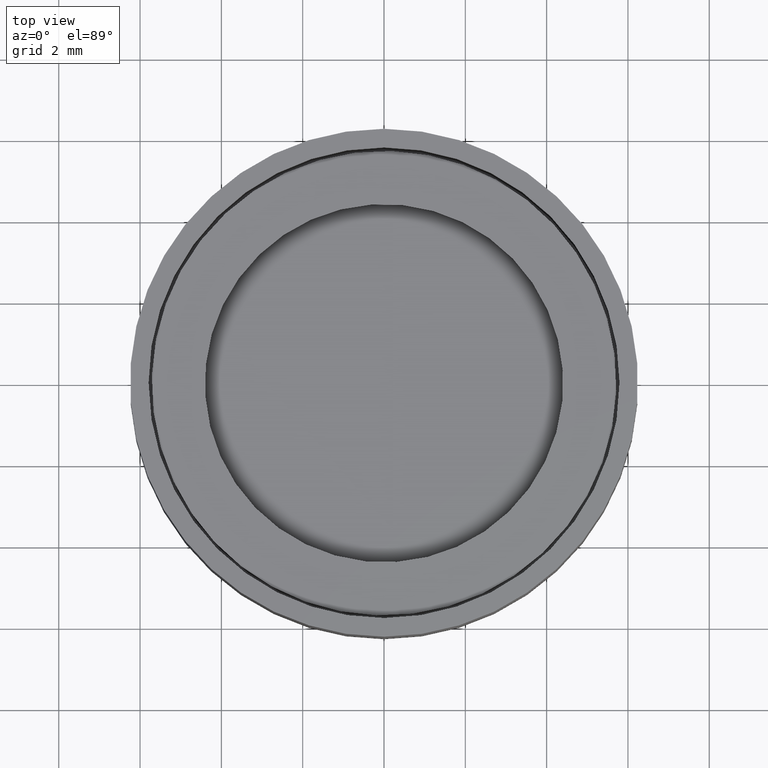
[diagram: clean part render]
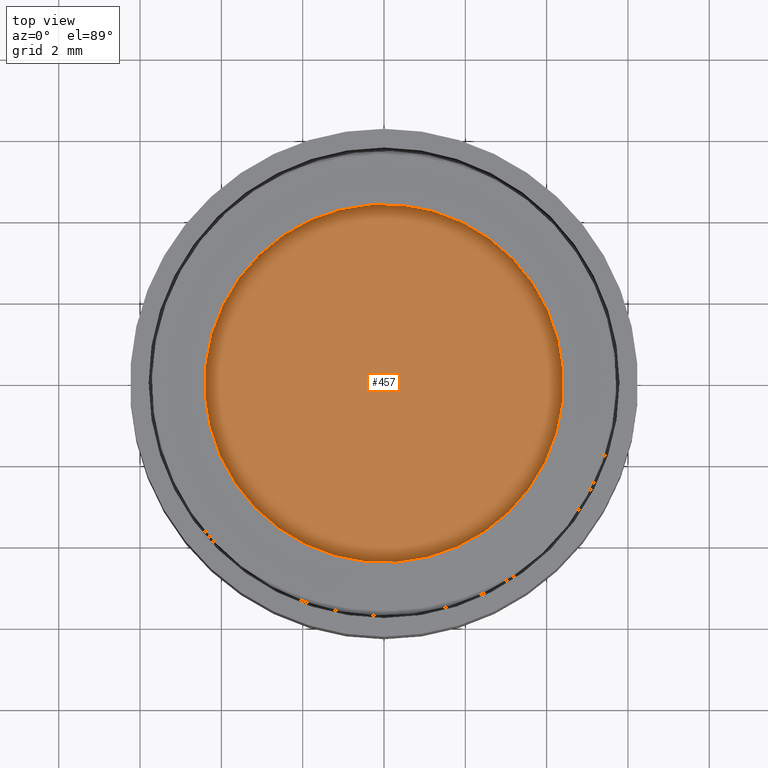
[diagram: same view with one face highlighted and labeled with its STEP entity id]
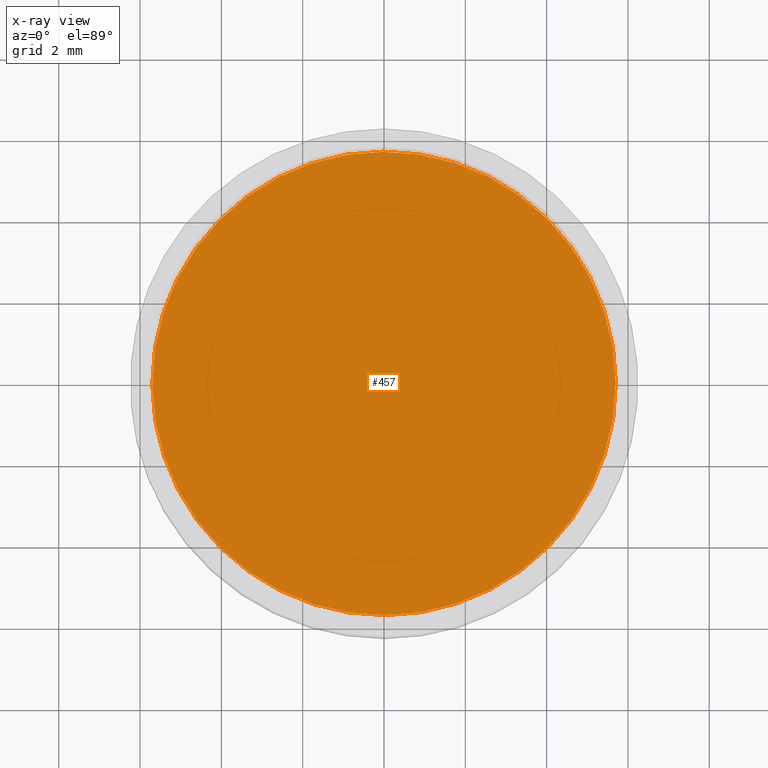
[diagram: x-ray of the same camera — body ghosted, the highlighted face saturated]
A machine part, top view. The second image highlights one B-rep face of the part: STEP entity #457.
The next image is the same camera in x-ray: the body ghosted, the highlighted face saturated — about 0% of this face is hidden behind the body in this view.
In plain terms, the highlighted planar face has unit normal (0, -0, 1).
Its self-contained STEP definition (entity closure, byte-faithful):
#54 = CIRCLE ( 'NONE', #426, 5.699999999999999289 ) ;
#76 = VERTEX_POINT ( 'NONE', #143 ) ;
#105 = EDGE_CURVE ( 'NONE', #76, #380, #236, .T. ) ;
#139 = DIRECTION ( 'NONE',  ( 0.8068447097065264417, 0.5907635858942145157, 0.0000000000000000000 ) ) ;
#143 = CARTESIAN_POINT ( 'NONE',  ( -4.599014845327200618, -3.367352439597023128, 2.380999999999999339 ) ) ;
#168 = CARTESIAN_POINT ( 'NONE',  ( 4.599014845327200618, 3.367352439597023572, 2.380999999999999339 ) ) ;
#186 = DIRECTION ( 'NONE',  ( 0.0000000000000000000, -0.0000000000000000000, 1.000000000000000000 ) ) ;
#206 = ORIENTED_EDGE ( 'NONE', *, *, #105, .T. ) ;
#215 = CARTESIAN_POINT ( 'NONE',  ( 0.0000000000000000000, 0.0000000000000000000, 2.380999999999999339 ) ) ;
#236 = CIRCLE ( 'NONE', #439, 5.699999999999999289 ) ;
#263 = DIRECTION ( 'NONE',  ( 0.0000000000000000000, 0.0000000000000000000, 1.000000000000000000 ) ) ;
#332 = CARTESIAN_POINT ( 'NONE',  ( 0.0000000000000000000, 0.0000000000000000000, 2.380999999999999339 ) ) ;
#378 = AXIS2_PLACEMENT_3D ( 'NONE', #332, #186, #139 ) ;
#380 = VERTEX_POINT ( 'NONE', #168 ) ;
#398 = EDGE_CURVE ( 'NONE', #380, #76, #54, .T. ) ;
#426 = AXIS2_PLACEMENT_3D ( 'NONE', #215, #263, #479 ) ;
#432 = ORIENTED_EDGE ( 'NONE', *, *, #398, .T. ) ;
#439 = AXIS2_PLACEMENT_3D ( 'NONE', #600, #451, #649 ) ;
#451 = DIRECTION ( 'NONE',  ( 0.0000000000000000000, 0.0000000000000000000, 1.000000000000000000 ) ) ;
#457 = ADVANCED_FACE ( 'NONE', ( #648 ), #653, .T. ) ;
#479 = DIRECTION ( 'NONE',  ( 0.8068447097065265528, 0.5907635858942146267, 0.0000000000000000000 ) ) ;
#484 = EDGE_LOOP ( 'NONE', ( #206, #432 ) ) ;
#600 = CARTESIAN_POINT ( 'NONE',  ( 0.0000000000000000000, 0.0000000000000000000, 2.380999999999999339 ) ) ;
#648 = FACE_OUTER_BOUND ( 'NONE', #484, .T. ) ;
#649 = DIRECTION ( 'NONE',  ( 0.8068447097065265528, 0.5907635858942146267, 0.0000000000000000000 ) ) ;
#653 = PLANE ( 'NONE',  #378 ) ;